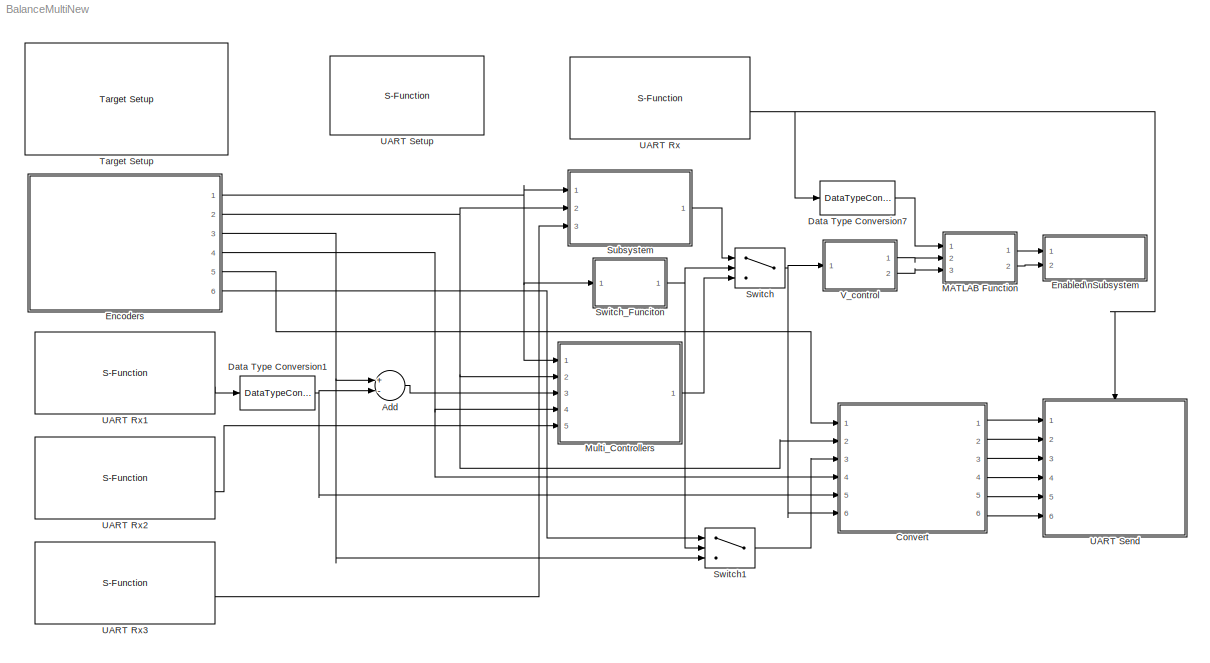
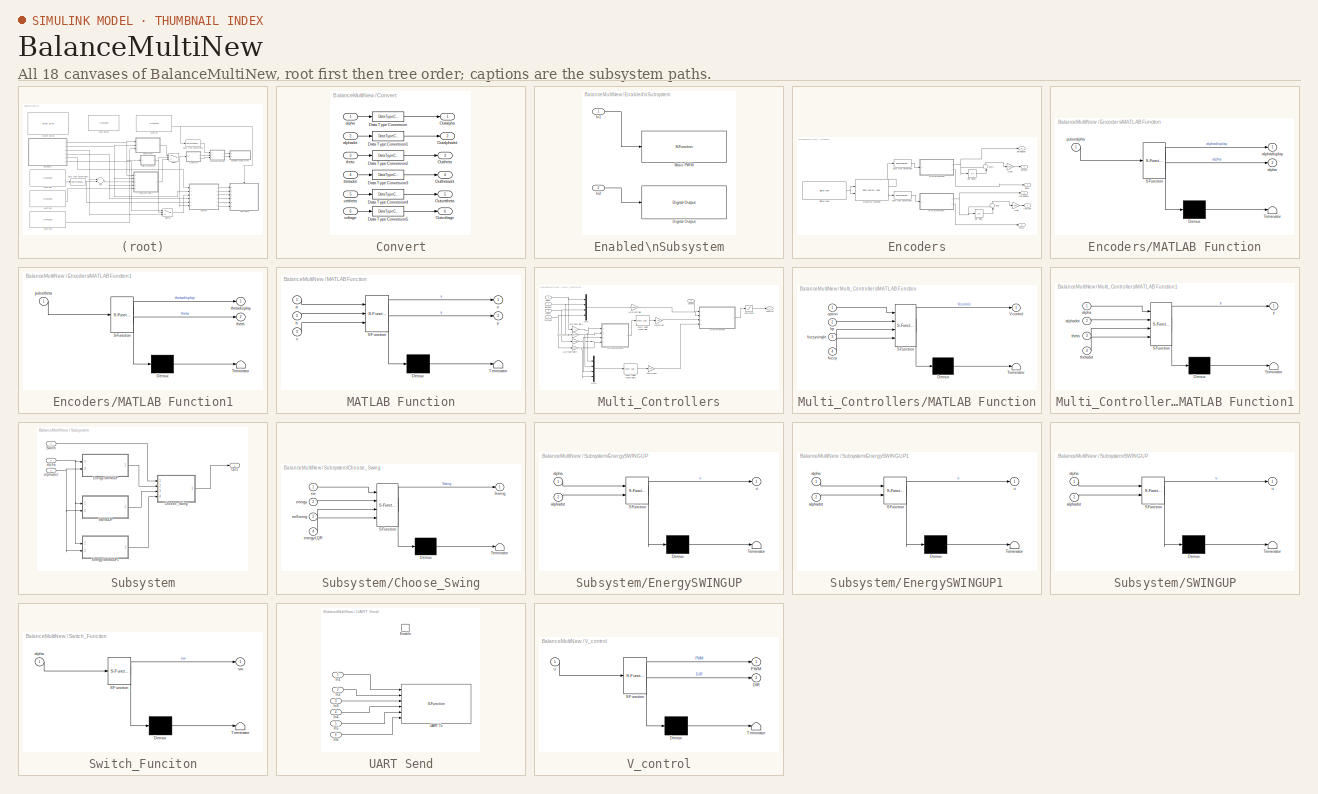
[diagram: thumbnail index - all 18 canvases of the model, root first then tree order]
MODEL BalanceMultiNew
KIND model
CONFIG PreLoadFcn = waijung.modelPreload; % Required for working with Waijung Blockset. Do not remove.
BLOCK [Sum] Add
  InputSameDT = off
  Inputs = +-
  OutDataTypeStr = Inherit: Inherit via internal rule
  Ports = [2, 1]
  SID = 1
  SaturateOnIntegerOverflow = off
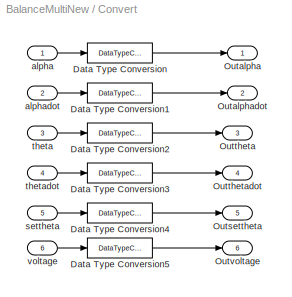
BLOCK [SubSystem] Convert
  FunctionWithSeparateData = off
  MaskHideContents = off
  MinAlgLoopOccurrences = off
  Opaque = off
  Ports = [6, 6]
  PropExecContextOutsideSubsystem = off
  RTWSystemCode = Auto
  RequestExecContextInheritance = off
  SID = 2
BLOCK [DataTypeConversion] Convert/Data Type Conversion
  OutDataTypeStr = single
  RndMeth = Floor
  SID = 9
  SaturateOnIntegerOverflow = off
BLOCK [DataTypeConversion] Convert/Data Type Conversion1
  OutDataTypeStr = single
  RndMeth = Floor
  SID = 10
  SaturateOnIntegerOverflow = off
BLOCK [DataTypeConversion] Convert/Data Type Conversion2
  OutDataTypeStr = single
  RndMeth = Floor
  SID = 11
  SaturateOnIntegerOverflow = off
BLOCK [DataTypeConversion] Convert/Data Type Conversion3
  OutDataTypeStr = single
  RndMeth = Floor
  SID = 12
  SaturateOnIntegerOverflow = off
BLOCK [DataTypeConversion] Convert/Data Type Conversion4
  OutDataTypeStr = single
  RndMeth = Floor
  SID = 13
  SaturateOnIntegerOverflow = off
BLOCK [DataTypeConversion] Convert/Data Type Conversion5
  OutDataTypeStr = single
  RndMeth = Floor
  SID = 14
  SaturateOnIntegerOverflow = off
BLOCK [Outport] Convert/Outalpha
  IconDisplay = Port number
  SID = 15
BLOCK [Outport] Convert/Outalphadot
  IconDisplay = Port number
  Port = 2
  SID = 16
BLOCK [Outport] Convert/Outsettheta
  IconDisplay = Port number
  Port = 5
  SID = 19
BLOCK [Outport] Convert/Outtheta
  IconDisplay = Port number
  Port = 3
  SID = 17
BLOCK [Outport] Convert/Outthetadot
  IconDisplay = Port number
  Port = 4
  SID = 18
BLOCK [Outport] Convert/Outvoltage
  IconDisplay = Port number
  Port = 6
  SID = 20
BLOCK [Inport] Convert/alpha
  IconDisplay = Port number
  SID = 3
BLOCK [Inport] Convert/alphadot
  IconDisplay = Port number
  Port = 2
  SID = 4
BLOCK [Inport] Convert/settheta
  IconDisplay = Port number
  Port = 5
  SID = 7
BLOCK [Inport] Convert/theta
  IconDisplay = Port number
  Port = 3
  SID = 5
BLOCK [Inport] Convert/thetadot
  IconDisplay = Port number
  Port = 4
  SID = 6
BLOCK [Inport] Convert/voltage
  IconDisplay = Port number
  Port = 6
  SID = 8
BLOCK [DataTypeConversion] Data Type Conversion1
  OutDataTypeStr = double
  RndMeth = Floor
  SID = 21
  SaturateOnIntegerOverflow = off
BLOCK [DataTypeConversion] Data Type Conversion7
  OutDataTypeStr = boolean
  RndMeth = Floor
  SID = 22
  SaturateOnIntegerOverflow = off
BLOCK [SubSystem] Enabled\nSubsystem
  FunctionWithSeparateData = off
  MaskHideContents = off
  MinAlgLoopOccurrences = off
  Opaque = off
  Ports = [2]
  PropExecContextOutsideSubsystem = off
  RTWSystemCode = Auto
  RequestExecContextInheritance = off
  SID = 23
  TreatAsAtomicUnit = on
BLOCK [S-Function] Enabled\nSubsystem/Basic PWM
  EnableBusSupport = off
  FunctionName = stm32f4_basicpwm
  Parameters = timer,pwmperiod,ch1pin,ch2pin,ch3pin,ch4pin,sampletime,sampletimestr,blockid,apb,portstr,pinstr,pinmat,timarr,timprescale,chmat,polaritystr
  Ports = [1]
  SID = 26
BLOCK [Reference] Enabled\nSubsystem/Digital Output  REF=stm32f4_io_lib/Digital Output
  Ports = [1]
  SID = 27
  SourceBlock = stm32f4_io_lib/Digital Output
  SourceType = stm32f4_digital_output
  bitbandingstr = \n#define EnabledSubsystemDigitalOutput_D12 Peripheral_BB(GPIOD->ODR, 12)  /* Output pin */
  blockid = EnabledSubsystemDigitalOutput
  cinputportlabel = DIR (PD12)
  coutputportlabel = 0
  enablecustomportlabel = on
  pinstr = GPIO_Pin_12
  port = D
  porttype = Push Pull
  porttypestr = PP
  sampletime = -1
  sampletimestr = 0.01
  speed = 100
  use_bitband = on
  use_pin0 = off
  use_pin1 = off
  use_pin10 = off
  use_pin11 = off
  use_pin12 = on
  use_pin13 = off
  use_pin14 = off
  use_pin15 = off
  use_pin2 = off
  use_pin3 = off
  use_pin4 = off
  use_pin5 = off
  use_pin6 = off
  use_pin7 = off
  use_pin8 = off
  use_pin9 = off
  usedpinarray = [0  0  0  0  0  0  0  0  0  0  0  0  1  0  0  0]
BLOCK [Inport] Enabled\nSubsystem/In1
  IconDisplay = Port number
  SID = 24
BLOCK [Inport] Enabled\nSubsystem/In2
  IconDisplay = Port number
  Port = 2
  SID = 25
BLOCK [SubSystem] Encoders
  FunctionWithSeparateData = off
  MaskHideContents = off
  MinAlgLoopOccurrences = off
  Opaque = off
  Ports = [0, 6]
  PropExecContextOutsideSubsystem = off
  RTWSystemCode = Auto
  RequestExecContextInheritance = off
  SID = 28
BLOCK [DataTypeConversion] Encoders/Data Type Conversion
  OutDataTypeStr = double
  RndMeth = Floor
  SID = 129
  SaturateOnIntegerOverflow = off
BLOCK [DataTypeConversion] Encoders/Data Type Conversion1
  OutDataTypeStr = double
  RndMeth = Floor
  SID = 130
  SaturateOnIntegerOverflow = off
BLOCK [Reference] Encoders/Digital Input  REF=stm32f4_io_lib/Digital Input
  Ports = [0, 1]
  SID = 107
  SourceBlock = stm32f4_io_lib/Digital Input
  SourceType = stm32f4_digital_input
  bitbandingstr = \n#define EncodersDigitalInput_A0 Peripheral_BB(GPIOA->IDR, 0)  /* Output pin */
  blockid = EncodersDigitalInput
  cinputportlabel = In1, In2
  coutputportlabel = Out1, Out2
  enablecustomportlabel = off
  pinstr = GPIO_Pin_0
  port = A
  porttype = None
  porttypestr = NOPULL
  sampletime = 0.01
  sampletimestr = 0.01
  speed = 100
  use_pin0 = on
  use_pin1 = off
  use_pin10 = off
  use_pin11 = off
  use_pin12 = off
  use_pin13 = off
  use_pin14 = off
  use_pin15 = off
  use_pin2 = off
  use_pin3 = off
  use_pin4 = off
  use_pin5 = off
  use_pin6 = off
  use_pin7 = off
  use_pin8 = off
  use_pin9 = off
  usedpinarray = [1  0  0  0  0  0  0  0  0  0  0  0  0  0  0  0]
BLOCK [Gain] Encoders/Gain
  Gain = 100
  OutDataTypeStr = Inherit: Inherit via internal rule
  ParamDataTypeStr = Inherit: Inherit via internal rule
  SID = 108
  SaturateOnIntegerOverflow = off
BLOCK [Gain] Encoders/Gain1
  Gain = 100
  OutDataTypeStr = Inherit: Inherit via internal rule
  ParamDataTypeStr = Inherit: Inherit via internal rule
  SID = 109
  SaturateOnIntegerOverflow = off
BLOCK [SubSystem] Encoders/MATLAB Function
  ErrorFcn = Stateflow.Translate.translate
  FunctionWithSeparateData = off
  MaskHideContents = off
  MinAlgLoopOccurrences = off
  Opaque = off
  PermitHierarchicalResolution = ExplicitOnly
  Ports = [1, 2]
  PropExecContextOutsideSubsystem = off
  RTWSystemCode = Auto
  RequestExecContextInheritance = off
  SFBlockType = MATLAB Function
  SID = 110
  TreatAsAtomicUnit = on
BLOCK [Demux] Encoders/MATLAB Function/ Demux 
  Outputs = 1
  Ports = [1, 1]
  SID = 110::19
BLOCK [S-Function] Encoders/MATLAB Function/ SFunction 
  EnableBusSupport = on
  FunctionName = sf_sfun
  PortCounts = [1 3]
  Ports = [1, 3]
  SID = 110::18
  Tag = Stateflow S-Function BalanceMultiNew 9
BLOCK [Terminator] Encoders/MATLAB Function/ Terminator 
  SID = 110::20
BLOCK [Outport] Encoders/MATLAB Function/alpha
  IconDisplay = Port number
  Port = 2
  SID = 110::21
BLOCK [Outport] Encoders/MATLAB Function/alphadisplay
  IconDisplay = Port number
  SID = 110::5
BLOCK [Inport] Encoders/MATLAB Function/pulsealpha
  IconDisplay = Port number
  SID = 110::1
BLOCK [SubSystem] Encoders/MATLAB Function1
  ErrorFcn = Stateflow.Translate.translate
  FunctionWithSeparateData = off
  MaskHideContents = off
  MinAlgLoopOccurrences = off
  Opaque = off
  PermitHierarchicalResolution = ExplicitOnly
  Ports = [1, 2]
  PropExecContextOutsideSubsystem = off
  RTWSystemCode = Auto
  RequestExecContextInheritance = off
  SFBlockType = MATLAB Function
  SID = 111
  TreatAsAtomicUnit = on
BLOCK [Demux] Encoders/MATLAB Function1/ Demux 
  Outputs = 1
  Ports = [1, 1]
  SID = 111::19
BLOCK [S-Function] Encoders/MATLAB Function1/ SFunction 
  EnableBusSupport = on
  FunctionName = sf_sfun
  PortCounts = [1 3]
  Ports = [1, 3]
  SID = 111::18
  Tag = Stateflow S-Function BalanceMultiNew 10
BLOCK [Terminator] Encoders/MATLAB Function1/ Terminator 
  SID = 111::20
BLOCK [Inport] Encoders/MATLAB Function1/pulsetheta
  IconDisplay = Port number
  SID = 111::1
BLOCK [Outport] Encoders/MATLAB Function1/theta
  IconDisplay = Port number
  Port = 2
  SID = 111::21
BLOCK [Outport] Encoders/MATLAB Function1/thetadisplay
  IconDisplay = Port number
  SID = 111::5
BLOCK [Reference] Encoders/Quadratur Encoder  REF=waijung_customcode/Basic Custom Code
  Ports = [2, 2]
  SID = 112
  SourceBlock = waijung_customcode/Basic Custom Code
  SourceType = waijung_basic_customcode
  blockid = EncodersQuadraturEncoder
  cinputportlabel = inalpha,intheta
  cinputportlabelstr = [\"inalpha\",\"intheta\"]
  coutputportlabel = alpha, theta
  coutputportlabelstr = [\"alpha\",\" theta\"]
  disablefuncallstr = disable_customio();
  enablecustomportlabel = on
  enablefuncallstr = enable_customio();
  incfiles = {'stm32f4_io_customcode.h'}
  incfilestrarray = [\"stm32f4_io_customcode.h\"]
  incpath = {fullfile(pwd,'customcode')}
  inputportcount = 2
  inputporttype = boolean,boolean
  inputporttypeid = [8  8]
  outputfuncallstr = output_customio(in1,in2,out1,out2);
  outputportcount = 2
  outputporttype = int32,int32
  outputporttypeid = [6  6]
  sampletime = -1
  sampletimestr = 0.01
  srcfiles = {'stm32f4_io_customcode.c'}
  srcpath = {fullfile(pwd,'customcode')}
BLOCK [Sum] Encoders/Sum
  IconShape = round
  InputSameDT = off
  Inputs = +-|
  OutDataTypeStr = Inherit: Inherit via internal rule
  Ports = [2, 1]
  SID = 113
  SaturateOnIntegerOverflow = off
BLOCK [Sum] Encoders/Sum1
  IconShape = round
  InputSameDT = off
  Inputs = +-|
  OutDataTypeStr = Inherit: Inherit via internal rule
  Ports = [2, 1]
  SID = 114
  SaturateOnIntegerOverflow = off
BLOCK [UnitDelay] Encoders/Unit Delay
  InputProcessing = Elements as channels (sample based)
  SID = 115
  SampleTime = -1
BLOCK [UnitDelay] Encoders/Unit Delay1
  InputProcessing = Elements as channels (sample based)
  SID = 116
  SampleTime = -1
BLOCK [Outport] Encoders/alpha
  IconDisplay = Port number
  SID = 117
BLOCK [Outport] Encoders/alphaDisplay
  IconDisplay = Port number
  Port = 5
  SID = 121
BLOCK [Outport] Encoders/alphadot
  IconDisplay = Port number
  Port = 2
  SID = 118
BLOCK [Outport] Encoders/theta
  IconDisplay = Port number
  Port = 3
  SID = 119
BLOCK [Outport] Encoders/thetaDisplay
  IconDisplay = Port number
  Port = 6
  SID = 122
BLOCK [Outport] Encoders/thetadot
  IconDisplay = Port number
  Port = 4
  SID = 120
BLOCK [SubSystem] MATLAB Function
  ErrorFcn = Stateflow.Translate.translate
  FunctionWithSeparateData = off
  MaskHideContents = off
  MinAlgLoopOccurrences = off
  Opaque = off
  PermitHierarchicalResolution = ExplicitOnly
  Ports = [3, 2]
  PropExecContextOutsideSubsystem = off
  RTWSystemCode = Auto
  RequestExecContextInheritance = off
  SFBlockType = MATLAB Function
  SID = 57
  TreatAsAtomicUnit = on
BLOCK [Demux] MATLAB Function/ Demux 
  Outputs = 1
  Ports = [1, 1]
  SID = 57::19
BLOCK [S-Function] MATLAB Function/ SFunction 
  EnableBusSupport = on
  FunctionName = sf_sfun
  PortCounts = [3 3]
  Ports = [3, 3]
  SID = 57::18
  Tag = Stateflow S-Function BalanceMultiNew 4
BLOCK [Terminator] MATLAB Function/ Terminator 
  SID = 57::20
BLOCK [Inport] MATLAB Function/a
  IconDisplay = Port number
  SID = 57::1
BLOCK [Inport] MATLAB Function/b
  IconDisplay = Port number
  Port = 2
  SID = 57::21
BLOCK [Inport] MATLAB Function/c
  IconDisplay = Port number
  Port = 3
  SID = 57::22
BLOCK [Outport] MATLAB Function/x
  IconDisplay = Port number
  SID = 57::23
BLOCK [Outport] MATLAB Function/y
  IconDisplay = Port number
  Port = 2
  SID = 57::5
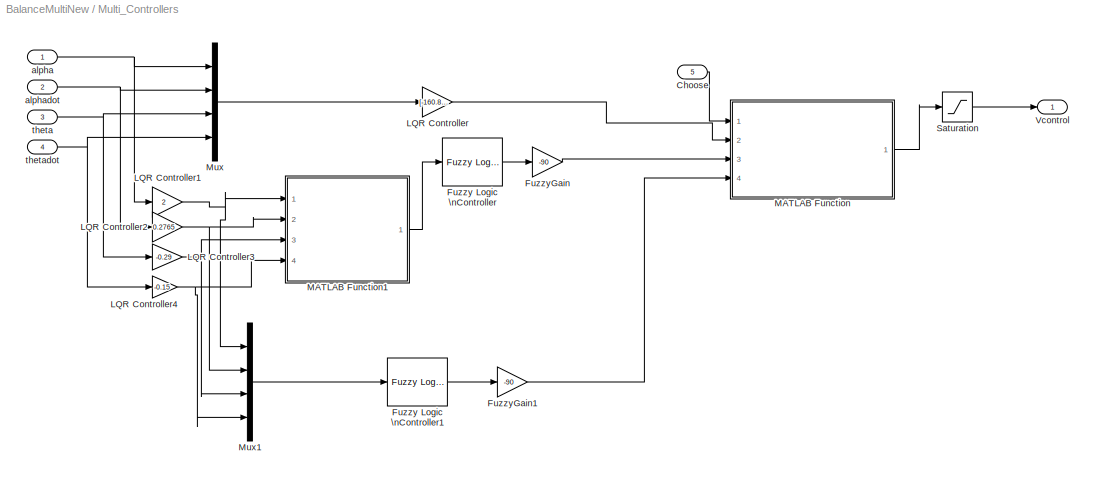
BLOCK [SubSystem] Multi_Controllers
  FunctionWithSeparateData = off
  MaskHideContents = off
  MinAlgLoopOccurrences = off
  Opaque = off
  Ports = [5, 1]
  PropExecContextOutsideSubsystem = off
  RTWSystemCode = Auto
  RequestExecContextInheritance = off
  SID = 58
BLOCK [Inport] Multi_Controllers/Choose
  IconDisplay = Port number
  Port = 5
  SID = 63
BLOCK [Reference] Multi_Controllers/Fuzzy Logic \nController  REF=fuzblock/Fuzzy Logic \nController  (lib defined in mdl_858b3b3e7478)
  Ports = [1, 1]
  SID = 64
  SourceBlock = fuzblock/Fuzzy Logic \nController
  SourceType = FIS
  fis = 'RIPfuzzyMam5.fis'
BLOCK [Reference] Multi_Controllers/Fuzzy Logic \nController1  REF=fuzblock/Fuzzy Logic \nController  (lib defined in mdl_858b3b3e7478)
  Ports = [1, 1]
  SID = 65
  SourceBlock = fuzblock/Fuzzy Logic \nController
  SourceType = FIS
  fis = 'CIP.fis'
BLOCK [Gain] Multi_Controllers/FuzzyGain
  Gain = -90
  OutDataTypeStr = Inherit: Inherit via internal rule
  ParamDataTypeStr = Inherit: Inherit via internal rule
  SID = 66
  SaturateOnIntegerOverflow = off
BLOCK [Gain] Multi_Controllers/FuzzyGain1
  Gain = -90
  OutDataTypeStr = Inherit: Inherit via internal rule
  ParamDataTypeStr = Inherit: Inherit via internal rule
  SID = 67
  SaturateOnIntegerOverflow = off
BLOCK [Gain] Multi_Controllers/LQR Controller
  Gain = [-160.8 -22.234  3.324 12.052]
  Multiplication = Matrix(K*u)
  OutDataTypeStr = Inherit: Inherit via internal rule
  ParamDataTypeStr = Inherit: Inherit via internal rule
  SID = 68
  SaturateOnIntegerOverflow = off
BLOCK [Gain] Multi_Controllers/LQR Controller1
  Gain = 2
  OutDataTypeStr = Inherit: Inherit via internal rule
  ParamDataTypeStr = Inherit: Inherit via internal rule
  SID = 69
  SaturateOnIntegerOverflow = off
BLOCK [Gain] Multi_Controllers/LQR Controller2
  Gain = 0.2765
  OutDataTypeStr = Inherit: Inherit via internal rule
  ParamDataTypeStr = Inherit: Inherit via internal rule
  SID = 70
  SaturateOnIntegerOverflow = off
BLOCK [Gain] Multi_Controllers/LQR Controller3
  Gain = -0.29
  OutDataTypeStr = Inherit: Inherit via internal rule
  ParamDataTypeStr = Inherit: Inherit via internal rule
  SID = 71
  SaturateOnIntegerOverflow = off
BLOCK [Gain] Multi_Controllers/LQR Controller4
  Gain = -0.15
  OutDataTypeStr = Inherit: Inherit via internal rule
  ParamDataTypeStr = Inherit: Inherit via internal rule
  SID = 72
  SaturateOnIntegerOverflow = off
BLOCK [SubSystem] Multi_Controllers/MATLAB Function
  ErrorFcn = Stateflow.Translate.translate
  FunctionWithSeparateData = off
  MaskHideContents = off
  MinAlgLoopOccurrences = off
  Opaque = off
  PermitHierarchicalResolution = ExplicitOnly
  Ports = [4, 1]
  PropExecContextOutsideSubsystem = off
  RTWSystemCode = Auto
  RequestExecContextInheritance = off
  SFBlockType = MATLAB Function
  SID = 73
  TreatAsAtomicUnit = on
BLOCK [Demux] Multi_Controllers/MATLAB Function/ Demux 
  Outputs = 1
  Ports = [1, 1]
  SID = 73::19
BLOCK [S-Function] Multi_Controllers/MATLAB Function/ SFunction 
  EnableBusSupport = on
  FunctionName = sf_sfun
  PortCounts = [4 2]
  Ports = [4, 2]
  SID = 73::18
  Tag = Stateflow S-Function BalanceMultiNew 5
BLOCK [Terminator] Multi_Controllers/MATLAB Function/ Terminator 
  SID = 73::20
BLOCK [Outport] Multi_Controllers/MATLAB Function/Vcontrol
  IconDisplay = Port number
  SID = 73::5
BLOCK [Inport] Multi_Controllers/MATLAB Function/fuzzy
  IconDisplay = Port number
  Port = 4
  SID = 73::23
BLOCK [Inport] Multi_Controllers/MATLAB Function/fuzzysingle
  IconDisplay = Port number
  Port = 3
  SID = 73::22
BLOCK [Inport] Multi_Controllers/MATLAB Function/lqr
  IconDisplay = Port number
  Port = 2
  SID = 73::21
BLOCK [Inport] Multi_Controllers/MATLAB Function/option
  IconDisplay = Port number
  SID = 73::1
BLOCK [SubSystem] Multi_Controllers/MATLAB Function1
  ErrorFcn = Stateflow.Translate.translate
  FunctionWithSeparateData = off
  MaskHideContents = off
  MinAlgLoopOccurrences = off
  Opaque = off
  PermitHierarchicalResolution = ExplicitOnly
  Ports = [4, 1]
  PropExecContextOutsideSubsystem = off
  RTWSystemCode = Auto
  RequestExecContextInheritance = off
  SFBlockType = MATLAB Function
  SID = 123
  TreatAsAtomicUnit = on
BLOCK [Demux] Multi_Controllers/MATLAB Function1/ Demux 
  Outputs = 1
  Ports = [1, 1]
  SID = 123::19
BLOCK [S-Function] Multi_Controllers/MATLAB Function1/ SFunction 
  EnableBusSupport = on
  FunctionName = sf_sfun
  PortCounts = [4 2]
  Ports = [4, 2]
  SID = 123::18
  Tag = Stateflow S-Function BalanceMultiNew 11
BLOCK [Terminator] Multi_Controllers/MATLAB Function1/ Terminator 
  SID = 123::20
BLOCK [Inport] Multi_Controllers/MATLAB Function1/alpha
  IconDisplay = Port number
  SID = 123::1
BLOCK [Inport] Multi_Controllers/MATLAB Function1/alphadot
  IconDisplay = Port number
  Port = 2
  SID = 123::21
BLOCK [Inport] Multi_Controllers/MATLAB Function1/theta
  IconDisplay = Port number
  Port = 3
  SID = 123::22
BLOCK [Inport] Multi_Controllers/MATLAB Function1/thetadot
  IconDisplay = Port number
  Port = 4
  SID = 123::23
BLOCK [Outport] Multi_Controllers/MATLAB Function1/y
  IconDisplay = Port number
  SID = 123::5
BLOCK [Mux] Multi_Controllers/Mux
  DisplayOption = bar
  Ports = [4, 1]
  SID = 74
BLOCK [Mux] Multi_Controllers/Mux1
  DisplayOption = bar
  Ports = [4, 1]
  SID = 128
BLOCK [Saturate] Multi_Controllers/Saturation
  InputPortMap = u0
  LowerLimit = -23
  Ports = [1, 1]
  SID = 77
  UpperLimit = 23
BLOCK [Outport] Multi_Controllers/Vcontrol
  IconDisplay = Port number
  SID = 78
BLOCK [Inport] Multi_Controllers/alpha
  IconDisplay = Port number
  SID = 59
BLOCK [Inport] Multi_Controllers/alphadot
  IconDisplay = Port number
  Port = 2
  SID = 60
BLOCK [Inport] Multi_Controllers/theta
  IconDisplay = Port number
  Port = 3
  SID = 61
BLOCK [Inport] Multi_Controllers/thetadot
  IconDisplay = Port number
  Port = 4
  SID = 62
BLOCK [SubSystem] Subsystem
  FunctionWithSeparateData = off
  MaskHideContents = off
  MinAlgLoopOccurrences = off
  Opaque = off
  Ports = [3, 1]
  PropExecContextOutsideSubsystem = off
  RTWSystemCode = Auto
  RequestExecContextInheritance = off
  SID = 79
BLOCK [SubSystem] Subsystem/Choose_Swing
  ErrorFcn = Stateflow.Translate.translate
  FunctionWithSeparateData = off
  MaskHideContents = off
  MinAlgLoopOccurrences = off
  Opaque = off
  PermitHierarchicalResolution = ExplicitOnly
  Ports = [4, 1]
  PropExecContextOutsideSubsystem = off
  RTWSystemCode = Auto
  RequestExecContextInheritance = off
  SFBlockType = MATLAB Function
  SID = 83
  TreatAsAtomicUnit = on
BLOCK [Demux] Subsystem/Choose_Swing/ Demux 
  Outputs = 1
  Ports = [1, 1]
  SID = 83::19
BLOCK [S-Function] Subsystem/Choose_Swing/ SFunction 
  EnableBusSupport = on
  FunctionName = sf_sfun
  PortCounts = [4 2]
  Ports = [4, 2]
  SID = 83::18
  Tag = Stateflow S-Function BalanceMultiNew 7
BLOCK [Terminator] Subsystem/Choose_Swing/ Terminator 
  SID = 83::20
BLOCK [Outport] Subsystem/Choose_Swing/Swing
  IconDisplay = Port number
  SID = 83::5
BLOCK [Inport] Subsystem/Choose_Swing/energy
  IconDisplay = Port number
  Port = 2
  SID = 83::21
BLOCK [Inport] Subsystem/Choose_Swing/energyLQR
  IconDisplay = Port number
  Port = 4
  SID = 83::23
BLOCK [Inport] Subsystem/Choose_Swing/errSwing
  IconDisplay = Port number
  Port = 3
  SID = 83::22
BLOCK [Inport] Subsystem/Choose_Swing/sw
  IconDisplay = Port number
  SID = 83::1
BLOCK [SubSystem] Subsystem/EnergySWINGUP
  ErrorFcn = Stateflow.Translate.translate
  FunctionWithSeparateData = off
  MaskHideContents = off
  MinAlgLoopOccurrences = off
  Opaque = off
  PermitHierarchicalResolution = ExplicitOnly
  Ports = [2, 1]
  PropExecContextOutsideSubsystem = off
  RTWSystemCode = Auto
  RequestExecContextInheritance = off
  SFBlockType = MATLAB Function
  SID = 84
  TreatAsAtomicUnit = on
BLOCK [Demux] Subsystem/EnergySWINGUP/ Demux 
  Outputs = 1
  Ports = [1, 1]
  SID = 84::19
BLOCK [S-Function] Subsystem/EnergySWINGUP/ SFunction 
  EnableBusSupport = on
  FunctionName = sf_sfun
  PortCounts = [2 2]
  Ports = [2, 2]
  SID = 84::18
  Tag = Stateflow S-Function BalanceMultiNew 2
BLOCK [Terminator] Subsystem/EnergySWINGUP/ Terminator 
  SID = 84::20
BLOCK [Inport] Subsystem/EnergySWINGUP/alpha
  IconDisplay = Port number
  SID = 84::21
BLOCK [Inport] Subsystem/EnergySWINGUP/alphadot
  IconDisplay = Port number
  Port = 2
  SID = 84::22
BLOCK [Outport] Subsystem/EnergySWINGUP/u
  IconDisplay = Port number
  SID = 84::23
BLOCK [SubSystem] Subsystem/EnergySWINGUP1
  ErrorFcn = Stateflow.Translate.translate
  FunctionWithSeparateData = off
  MaskHideContents = off
  MinAlgLoopOccurrences = off
  Opaque = off
  PermitHierarchicalResolution = ExplicitOnly
  Ports = [2, 1]
  PropExecContextOutsideSubsystem = off
  RTWSystemCode = Auto
  RequestExecContextInheritance = off
  SFBlockType = MATLAB Function
  SID = 85
  TreatAsAtomicUnit = on
BLOCK [Demux] Subsystem/EnergySWINGUP1/ Demux 
  Outputs = 1
  Ports = [1, 1]
  SID = 85::19
BLOCK [S-Function] Subsystem/EnergySWINGUP1/ SFunction 
  EnableBusSupport = on
  FunctionName = sf_sfun
  PortCounts = [2 2]
  Ports = [2, 2]
  SID = 85::18
  Tag = Stateflow S-Function BalanceMultiNew 8
BLOCK [Terminator] Subsystem/EnergySWINGUP1/ Terminator 
  SID = 85::20
BLOCK [Inport] Subsystem/EnergySWINGUP1/alpha
  IconDisplay = Port number
  SID = 85::21
BLOCK [Inport] Subsystem/EnergySWINGUP1/alphadot
  IconDisplay = Port number
  Port = 2
  SID = 85::22
BLOCK [Outport] Subsystem/EnergySWINGUP1/u
  IconDisplay = Port number
  SID = 85::23
BLOCK [Outport] Subsystem/Out1
  IconDisplay = Port number
  SID = 87
BLOCK [SubSystem] Subsystem/SWINGUP
  ErrorFcn = Stateflow.Translate.translate
  FunctionWithSeparateData = off
  MaskHideContents = off
  MinAlgLoopOccurrences = off
  Opaque = off
  PermitHierarchicalResolution = ExplicitOnly
  Ports = [2, 1]
  PropExecContextOutsideSubsystem = off
  RTWSystemCode = Auto
  RequestExecContextInheritance = off
  SFBlockType = MATLAB Function
  SID = 86
  TreatAsAtomicUnit = on
BLOCK [Demux] Subsystem/SWINGUP/ Demux 
  Outputs = 1
  Ports = [1, 1]
  SID = 86::19
BLOCK [S-Function] Subsystem/SWINGUP/ SFunction 
  EnableBusSupport = on
  FunctionName = sf_sfun
  PortCounts = [2 2]
  Ports = [2, 2]
  SID = 86::18
  Tag = Stateflow S-Function BalanceMultiNew 6
BLOCK [Terminator] Subsystem/SWINGUP/ Terminator 
  SID = 86::20
BLOCK [Inport] Subsystem/SWINGUP/alpha
  IconDisplay = Port number
  SID = 86::21
BLOCK [Inport] Subsystem/SWINGUP/alphadot
  IconDisplay = Port number
  Port = 2
  SID = 86::22
BLOCK [Outport] Subsystem/SWINGUP/u
  IconDisplay = Port number
  SID = 86::23
BLOCK [Inport] Subsystem/Switch
  IconDisplay = Port number
  Port = 3
  SID = 82
BLOCK [Inport] Subsystem/alpha
  IconDisplay = Port number
  SID = 80
BLOCK [Inport] Subsystem/alphadot
  IconDisplay = Port number
  Port = 2
  SID = 81
BLOCK [Switch] Switch
  InputSameDT = off
  SID = 88
  SaturateOnIntegerOverflow = off
  Threshold = 1
BLOCK [Switch] Switch1
  InputSameDT = off
  SID = 89
  SaturateOnIntegerOverflow = off
  Threshold = 1
BLOCK [SubSystem] Switch_Funciton
  ErrorFcn = Stateflow.Translate.translate
  FunctionWithSeparateData = off
  MaskHideContents = off
  MinAlgLoopOccurrences = off
  Opaque = off
  PermitHierarchicalResolution = ExplicitOnly
  Ports = [1, 1]
  PropExecContextOutsideSubsystem = off
  RTWSystemCode = Auto
  RequestExecContextInheritance = off
  SFBlockType = MATLAB Function
  SID = 90
  TreatAsAtomicUnit = on
BLOCK [Demux] Switch_Funciton/ Demux 
  Outputs = 1
  Ports = [1, 1]
  SID = 90::19
BLOCK [S-Function] Switch_Funciton/ SFunction 
  EnableBusSupport = on
  FunctionName = sf_sfun
  PortCounts = [1 2]
  Ports = [1, 2]
  SID = 90::18
  Tag = Stateflow S-Function BalanceMultiNew 3
BLOCK [Terminator] Switch_Funciton/ Terminator 
  SID = 90::20
BLOCK [Inport] Switch_Funciton/alpha
  IconDisplay = Port number
  SID = 90::1
BLOCK [Outport] Switch_Funciton/sw
  IconDisplay = Port number
  SID = 90::5
BLOCK [Reference] Target Setup  REF=stm32f4_device_config_lib/Target Setup
  Ports = []
  Priority = 100
  SID = 91
  SourceBlock = stm32f4_device_config_lib/Target Setup
  SourceType = stm32f4_target_setup
  assemblercontrolstr = --cpu Cortex-M4.fp -g --apcs=interwork  --xref $(INCLUDES)
  blockid = TargetSetup
  clockconfig = STM32F4DISCOVERY Default (HSEOSC-8MHz/HCLK-168MHz)
  compiler = MDK-ARM
  compilercontrolstr = -c --cpu Cortex-M4.fp -g -O3 --apcs=interwork --split_sections $(INCLUDES)
  editctrlstr = off
  enableautocompiledownload = off
  execprofile = None
  flashlength = 1M
  flashorigin = 0x8000000
  fullchiperase = off
  hclk = 168000000
  heapsize = 0x2000
  hseval = 8000000
  lastprofileruart = 3
  linkercontrolstr = --cpu Cortex-M4.fp --strict --scatter \"$(MODELNAME).sct\" --summary_stderr --info summarysizes --map --xref --callgraph --symbols --info sizes --info totals --info unused --info veneers  --list \".\\$(MODELNAME).map\" -o $(MODELNAME).axf
  manualsetsampletime = off
  mcu = STM32F407VG (LQFP100); STM32F4DISCOVERY
  mcustr = STM32F407VG
  profilerbaud = 500000
  profilerinitstr = 0.01,168000000,1680000,500000,0
  profilertxpin = D8
  profileruart = 3
  programmerinterface = ST-Link
  ramlength = 112k
  ramorigin = 0x20000000
  runafterdownload = on
  sampletime = 0.01
  showmemoryconfiguration = off
  stacksize = 0x2000
  system_stm32f4xx_c_path = <path>\\stm32f4_default\\hseosc8mhz
  systickreloadvalue = 1680000
BLOCK [S-Function] UART Rx
  EnableBusSupport = off
  FunctionName = stm32f4_usart
  Parameters = configuration,uartmodule,transfer,baudrate,inputtype,outputtype,confstr,binheaderarray,binterminatorarray,asciiheader,asciiterminator,bindatalength,packetmode,varname,sampletime,sampletimestr,blockid  <repeated x6 — deduplicated; at blocks: UART Rx, UART Rx1, UART Rx2, UART Rx3, UART Tx, UART Setup>
  Ports = [0, 2]
  Priority = 1
  SID = 92
BLOCK [S-Function] UART Rx1
  EnableBusSupport = off
  FunctionName = stm32f4_usart
  Ports = [0, 2]
  Priority = 1
  SID = 93
BLOCK [S-Function] UART Rx2
  EnableBusSupport = off
  FunctionName = stm32f4_usart
  Ports = [0, 2]
  Priority = 1
  SID = 94
BLOCK [S-Function] UART Rx3
  EnableBusSupport = off
  FunctionName = stm32f4_usart
  Ports = [0, 2]
  Priority = 1
  SID = 95
BLOCK [SubSystem] UART Send
  FunctionWithSeparateData = off
  MaskHideContents = off
  MinAlgLoopOccurrences = off
  Opaque = off
  Ports = [6, 0, 1]
  PropExecContextOutsideSubsystem = off
  RTWSystemCode = Auto
  RequestExecContextInheritance = off
  SID = 96
  TreatAsAtomicUnit = on
BLOCK [EnablePort] UART Send/Enable
  Ports = []
  SID = 103
BLOCK [Inport] UART Send/In1
  IconDisplay = Port number
  SID = 97
BLOCK [Inport] UART Send/In2
  IconDisplay = Port number
  Port = 2
  SID = 98
BLOCK [Inport] UART Send/In3
  IconDisplay = Port number
  Port = 3
  SID = 99
BLOCK [Inport] UART Send/In4
  IconDisplay = Port number
  Port = 4
  SID = 100
BLOCK [Inport] UART Send/In5
  IconDisplay = Port number
  Port = 5
  SID = 101
BLOCK [Inport] UART Send/In6
  IconDisplay = Port number
  Port = 6
  SID = 102
BLOCK [S-Function] UART Send/UART Tx
  EnableBusSupport = off
  FunctionName = stm32f4_usart
  Ports = [6]
  Priority = 1
  SID = 104
BLOCK [S-Function] UART Setup
  EnableBusSupport = off
  FunctionName = stm32f4_usart
  Ports = []
  Priority = 1
  SID = 105
BLOCK [SubSystem] V_control
  ErrorFcn = Stateflow.Translate.translate
  FunctionWithSeparateData = off
  MaskHideContents = off
  MinAlgLoopOccurrences = off
  Opaque = off
  PermitHierarchicalResolution = ExplicitOnly
  Ports = [1, 2]
  PropExecContextOutsideSubsystem = off
  RTWSystemCode = Auto
  RequestExecContextInheritance = off
  SFBlockType = MATLAB Function
  SID = 106
  TreatAsAtomicUnit = on
BLOCK [Demux] V_control/ Demux 
  Outputs = 1
  Ports = [1, 1]
  SID = 106::19
BLOCK [S-Function] V_control/ SFunction 
  EnableBusSupport = on
  FunctionName = sf_sfun
  PortCounts = [1 3]
  Ports = [1, 3]
  SID = 106::18
  Tag = Stateflow S-Function BalanceMultiNew 1
BLOCK [Terminator] V_control/ Terminator 
  SID = 106::20
BLOCK [Outport] V_control/DIR
  IconDisplay = Port number
  Port = 2
  SID = 106::21
BLOCK [Outport] V_control/PWM
  IconDisplay = Port number
  SID = 106::5
BLOCK [Inport] V_control/u
  IconDisplay = Port number
  SID = 106::1
LINE Add:1 -> Multi_Controllers:3
LINE Convert/Data Type Conversion1:1 -> Convert/Outalphadot:1
LINE Convert/Data Type Conversion2:1 -> Convert/Outtheta:1
LINE Convert/Data Type Conversion3:1 -> Convert/Outthetadot:1
LINE Convert/Data Type Conversion4:1 -> Convert/Outsettheta:1
LINE Convert/Data Type Conversion5:1 -> Convert/Outvoltage:1
LINE Convert/Data Type Conversion:1 -> Convert/Outalpha:1
LINE Convert/alpha:1 -> Convert/Data Type Conversion:1
LINE Convert/alphadot:1 -> Convert/Data Type Conversion1:1
LINE Convert/settheta:1 -> Convert/Data Type Conversion4:1
LINE Convert/theta:1 -> Convert/Data Type Conversion2:1
LINE Convert/thetadot:1 -> Convert/Data Type Conversion3:1
LINE Convert/voltage:1 -> Convert/Data Type Conversion5:1
LINE Convert:1 -> UART Send:1
LINE Convert:2 -> UART Send:2
LINE Convert:3 -> UART Send:3
LINE Convert:4 -> UART Send:4
LINE Convert:5 -> UART Send:5
LINE Convert:6 -> UART Send:6
NET Data Type Conversion1:1 -> Add:2, Convert:5
LINE Data Type Conversion7:1 -> MATLAB Function:1
LINE Enabled\nSubsystem/In1:1 -> Enabled\nSubsystem/Basic PWM:1
LINE Enabled\nSubsystem/In2:1 -> Enabled\nSubsystem/Digital Output:1
LINE Encoders/Data Type Conversion1:1 -> Encoders/MATLAB Function1:1
LINE Encoders/Data Type Conversion:1 -> Encoders/MATLAB Function:1
NET Encoders/Digital Input:1 -> Encoders/Quadratur Encoder:1, Encoders/Quadratur Encoder:2
LINE Encoders/Gain1:1 -> Encoders/alphadot:1
LINE Encoders/Gain:1 -> Encoders/thetadot:1
LINE Encoders/MATLAB Function/ Demux :1 -> Encoders/MATLAB Function/ Terminator :1
LINE Encoders/MATLAB Function/ SFunction :1 -> Encoders/MATLAB Function/ Demux :1
LINE Encoders/MATLAB Function/ SFunction :2 -> Encoders/MATLAB Function/alphadisplay:1
LINE Encoders/MATLAB Function/ SFunction :3 -> Encoders/MATLAB Function/alpha:1
LINE Encoders/MATLAB Function/pulsealpha:1 -> Encoders/MATLAB Function/ SFunction :1
LINE Encoders/MATLAB Function1/ Demux :1 -> Encoders/MATLAB Function1/ Terminator :1
LINE Encoders/MATLAB Function1/ SFunction :1 -> Encoders/MATLAB Function1/ Demux :1
LINE Encoders/MATLAB Function1/ SFunction :2 -> Encoders/MATLAB Function1/thetadisplay:1
LINE Encoders/MATLAB Function1/ SFunction :3 -> Encoders/MATLAB Function1/theta:1
LINE Encoders/MATLAB Function1/pulsetheta:1 -> Encoders/MATLAB Function1/ SFunction :1
NET Encoders/MATLAB Function1:1 -> Encoders/Sum:1, Encoders/Unit Delay:1, Encoders/thetaDisplay:1
LINE Encoders/MATLAB Function1:2 -> Encoders/theta:1
NET Encoders/MATLAB Function:1 -> Encoders/Sum1:1, Encoders/Unit Delay1:1, Encoders/alphaDisplay:1
LINE Encoders/MATLAB Function:2 -> Encoders/alpha:1
LINE Encoders/Quadratur Encoder:1 -> Encoders/Data Type Conversion:1
LINE Encoders/Quadratur Encoder:2 -> Encoders/Data Type Conversion1:1
LINE Encoders/Sum1:1 -> Encoders/Gain1:1
LINE Encoders/Sum:1 -> Encoders/Gain:1
LINE Encoders/Unit Delay1:1 -> Encoders/Sum1:2
LINE Encoders/Unit Delay:1 -> Encoders/Sum:2
NET Encoders:1 -> Multi_Controllers:1, Subsystem:1, Switch_Funciton:1
NET Encoders:2 -> Convert:2, Multi_Controllers:2, Subsystem:2
NET Encoders:3 -> Add:1, Switch1:3
NET Encoders:4 -> Convert:4, Multi_Controllers:4
LINE Encoders:5 -> Convert:1
LINE Encoders:6 -> Switch1:1
LINE MATLAB Function/ Demux :1 -> MATLAB Function/ Terminator :1
LINE MATLAB Function/ SFunction :1 -> MATLAB Function/ Demux :1
LINE MATLAB Function/ SFunction :2 -> MATLAB Function/x:1
LINE MATLAB Function/ SFunction :3 -> MATLAB Function/y:1
LINE MATLAB Function/a:1 -> MATLAB Function/ SFunction :1
LINE MATLAB Function/b:1 -> MATLAB Function/ SFunction :2
LINE MATLAB Function/c:1 -> MATLAB Function/ SFunction :3
LINE MATLAB Function:1 -> Enabled\nSubsystem:1
LINE MATLAB Function:2 -> Enabled\nSubsystem:2
LINE Multi_Controllers/Choose:1 -> Multi_Controllers/MATLAB Function:1
LINE Multi_Controllers/Fuzzy Logic \nController1:1 -> Multi_Controllers/FuzzyGain1:1
LINE Multi_Controllers/Fuzzy Logic \nController:1 -> Multi_Controllers/FuzzyGain:1
LINE Multi_Controllers/FuzzyGain1:1 -> Multi_Controllers/MATLAB Function:4
LINE Multi_Controllers/FuzzyGain:1 -> Multi_Controllers/MATLAB Function:3
NET Multi_Controllers/LQR Controller1:1 -> Multi_Controllers/MATLAB Function1:1, Multi_Controllers/Mux1:1
NET Multi_Controllers/LQR Controller2:1 -> Multi_Controllers/MATLAB Function1:2, Multi_Controllers/Mux1:2
NET Multi_Controllers/LQR Controller3:1 -> Multi_Controllers/MATLAB Function1:3, Multi_Controllers/Mux1:3
NET Multi_Controllers/LQR Controller4:1 -> Multi_Controllers/MATLAB Function1:4, Multi_Controllers/Mux1:4
LINE Multi_Controllers/LQR Controller:1 -> Multi_Controllers/MATLAB Function:2
LINE Multi_Controllers/MATLAB Function/ Demux :1 -> Multi_Controllers/MATLAB Function/ Terminator :1
LINE Multi_Controllers/MATLAB Function/ SFunction :1 -> Multi_Controllers/MATLAB Function/ Demux :1
LINE Multi_Controllers/MATLAB Function/ SFunction :2 -> Multi_Controllers/MATLAB Function/Vcontrol:1
LINE Multi_Controllers/MATLAB Function/fuzzy:1 -> Multi_Controllers/MATLAB Function/ SFunction :4
LINE Multi_Controllers/MATLAB Function/fuzzysingle:1 -> Multi_Controllers/MATLAB Function/ SFunction :3
LINE Multi_Controllers/MATLAB Function/lqr:1 -> Multi_Controllers/MATLAB Function/ SFunction :2
LINE Multi_Controllers/MATLAB Function/option:1 -> Multi_Controllers/MATLAB Function/ SFunction :1
LINE Multi_Controllers/MATLAB Function1/ Demux :1 -> Multi_Controllers/MATLAB Function1/ Terminator :1
LINE Multi_Controllers/MATLAB Function1/ SFunction :1 -> Multi_Controllers/MATLAB Function1/ Demux :1
LINE Multi_Controllers/MATLAB Function1/ SFunction :2 -> Multi_Controllers/MATLAB Function1/y:1
LINE Multi_Controllers/MATLAB Function1/alpha:1 -> Multi_Controllers/MATLAB Function1/ SFunction :1
LINE Multi_Controllers/MATLAB Function1/alphadot:1 -> Multi_Controllers/MATLAB Function1/ SFunction :2
LINE Multi_Controllers/MATLAB Function1/theta:1 -> Multi_Controllers/MATLAB Function1/ SFunction :3
LINE Multi_Controllers/MATLAB Function1/thetadot:1 -> Multi_Controllers/MATLAB Function1/ SFunction :4
LINE Multi_Controllers/MATLAB Function1:1 -> Multi_Controllers/Fuzzy Logic \nController:1
LINE Multi_Controllers/MATLAB Function:1 -> Multi_Controllers/Saturation:1
LINE Multi_Controllers/Mux1:1 -> Multi_Controllers/Fuzzy Logic \nController1:1
LINE Multi_Controllers/Mux:1 -> Multi_Controllers/LQR Controller:1
LINE Multi_Controllers/Saturation:1 -> Multi_Controllers/Vcontrol:1
NET Multi_Controllers/alpha:1 -> Multi_Controllers/LQR Controller1:1, Multi_Controllers/Mux:1
NET Multi_Controllers/alphadot:1 -> Multi_Controllers/LQR Controller2:1, Multi_Controllers/Mux:2
NET Multi_Controllers/theta:1 -> Multi_Controllers/LQR Controller3:1, Multi_Controllers/Mux:3
NET Multi_Controllers/thetadot:1 -> Multi_Controllers/LQR Controller4:1, Multi_Controllers/Mux:4
LINE Multi_Controllers:1 -> Switch:3
LINE Subsystem/Choose_Swing/ Demux :1 -> Subsystem/Choose_Swing/ Terminator :1
LINE Subsystem/Choose_Swing/ SFunction :1 -> Subsystem/Choose_Swing/ Demux :1
LINE Subsystem/Choose_Swing/ SFunction :2 -> Subsystem/Choose_Swing/Swing:1
LINE Subsystem/Choose_Swing/energy:1 -> Subsystem/Choose_Swing/ SFunction :2
LINE Subsystem/Choose_Swing/energyLQR:1 -> Subsystem/Choose_Swing/ SFunction :4
LINE Subsystem/Choose_Swing/errSwing:1 -> Subsystem/Choose_Swing/ SFunction :3
LINE Subsystem/Choose_Swing/sw:1 -> Subsystem/Choose_Swing/ SFunction :1
LINE Subsystem/Choose_Swing:1 -> Subsystem/Out1:1
LINE Subsystem/EnergySWINGUP/ Demux :1 -> Subsystem/EnergySWINGUP/ Terminator :1
LINE Subsystem/EnergySWINGUP/ SFunction :1 -> Subsystem/EnergySWINGUP/ Demux :1
LINE Subsystem/EnergySWINGUP/ SFunction :2 -> Subsystem/EnergySWINGUP/u:1
LINE Subsystem/EnergySWINGUP/alpha:1 -> Subsystem/EnergySWINGUP/ SFunction :1
LINE Subsystem/EnergySWINGUP/alphadot:1 -> Subsystem/EnergySWINGUP/ SFunction :2
LINE Subsystem/EnergySWINGUP1/ Demux :1 -> Subsystem/EnergySWINGUP1/ Terminator :1
LINE Subsystem/EnergySWINGUP1/ SFunction :1 -> Subsystem/EnergySWINGUP1/ Demux :1
LINE Subsystem/EnergySWINGUP1/ SFunction :2 -> Subsystem/EnergySWINGUP1/u:1
LINE Subsystem/EnergySWINGUP1/alpha:1 -> Subsystem/EnergySWINGUP1/ SFunction :1
LINE Subsystem/EnergySWINGUP1/alphadot:1 -> Subsystem/EnergySWINGUP1/ SFunction :2
LINE Subsystem/EnergySWINGUP1:1 -> Subsystem/Choose_Swing:4
LINE Subsystem/EnergySWINGUP:1 -> Subsystem/Choose_Swing:2
LINE Subsystem/SWINGUP/ Demux :1 -> Subsystem/SWINGUP/ Terminator :1
LINE Subsystem/SWINGUP/ SFunction :1 -> Subsystem/SWINGUP/ Demux :1
LINE Subsystem/SWINGUP/ SFunction :2 -> Subsystem/SWINGUP/u:1
LINE Subsystem/SWINGUP/alpha:1 -> Subsystem/SWINGUP/ SFunction :1
LINE Subsystem/SWINGUP/alphadot:1 -> Subsystem/SWINGUP/ SFunction :2
LINE Subsystem/SWINGUP:1 -> Subsystem/Choose_Swing:3
LINE Subsystem/Switch:1 -> Subsystem/Choose_Swing:1
NET Subsystem/alpha:1 -> Subsystem/EnergySWINGUP1:1, Subsystem/EnergySWINGUP:1, Subsystem/SWINGUP:1
NET Subsystem/alphadot:1 -> Subsystem/EnergySWINGUP1:2, Subsystem/EnergySWINGUP:2, Subsystem/SWINGUP:2
LINE Subsystem:1 -> Switch:1
LINE Switch1:1 -> Convert:3
NET Switch:1 -> Convert:6, V_control:1
LINE Switch_Funciton/ Demux :1 -> Switch_Funciton/ Terminator :1
LINE Switch_Funciton/ SFunction :1 -> Switch_Funciton/ Demux :1
LINE Switch_Funciton/ SFunction :2 -> Switch_Funciton/sw:1
LINE Switch_Funciton/alpha:1 -> Switch_Funciton/ SFunction :1
NET Switch_Funciton:1 -> Switch1:2, Switch:2
LINE UART Rx1:2 -> Data Type Conversion1:1
LINE UART Rx2:2 -> Multi_Controllers:5
LINE UART Rx3:2 -> Subsystem:3
NET UART Rx:2 -> Data Type Conversion7:1, UART Send:enable
LINE UART Send/In1:1 -> UART Send/UART Tx:1
LINE UART Send/In2:1 -> UART Send/UART Tx:2
LINE UART Send/In3:1 -> UART Send/UART Tx:3
LINE UART Send/In4:1 -> UART Send/UART Tx:4
LINE UART Send/In5:1 -> UART Send/UART Tx:5
LINE UART Send/In6:1 -> UART Send/UART Tx:6
LINE V_control/ Demux :1 -> V_control/ Terminator :1
LINE V_control/ SFunction :1 -> V_control/ Demux :1
LINE V_control/ SFunction :2 -> V_control/PWM:1
LINE V_control/ SFunction :3 -> V_control/DIR:1
LINE V_control/u:1 -> V_control/ SFunction :1
LINE V_control:1 -> MATLAB Function:2
LINE V_control:2 -> MATLAB Function:3
note: NET lines group one-source signal fan-out (src -> all destinations, sorted); 1:1 wires keep LINE
CHART V_control states=1 transitions=1
  STATE_LABEL 'eML_blk_kernel()'
CHART Subsystem/EnergySWINGUP states=1 transitions=1
  STATE_LABEL 'eML_blk_kernel()'
CHART Switch_Funciton states=1 transitions=1
  STATE_LABEL 'eML_blk_kernel()'
CHART MATLAB Function states=1 transitions=1
  STATE_LABEL 'eML_blk_kernel()'
CHART Multi_Controllers/MATLAB Function states=1 transitions=1
  STATE_LABEL 'eML_blk_kernel()'
CHART Subsystem/SWINGUP states=1 transitions=1
  STATE_LABEL 'eML_blk_kernel()'
CHART Subsystem/Choose_Swing states=1 transitions=1
  STATE_LABEL 'eML_blk_kernel()'
CHART Subsystem/EnergySWINGUP1 states=1 transitions=1
  STATE_LABEL 'eML_blk_kernel()'
CHART Encoders/MATLAB Function states=1 transitions=1
  STATE_LABEL 'eML_blk_kernel()'
CHART Encoders/MATLAB Function1 states=1 transitions=1
  STATE_LABEL 'eML_blk_kernel()'
CHART Multi_Controllers/MATLAB Function1 states=1 transitions=1
  STATE_LABEL 'eML_blk_kernel()'
note: 1 file-system path scrubbed to <path> (not preserved elsewhere — flat text is the only slx artifact)
